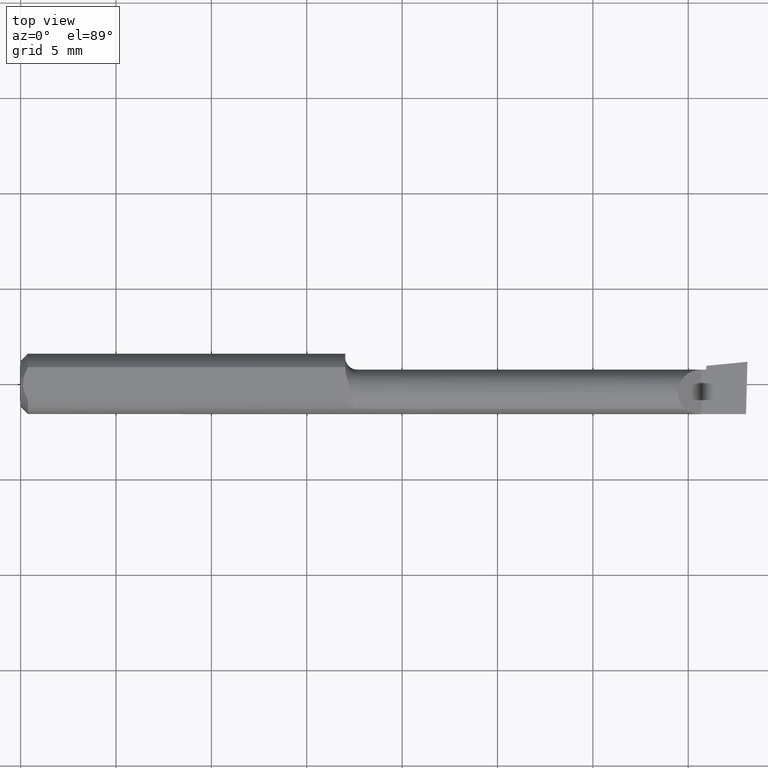
[diagram: clean part render]
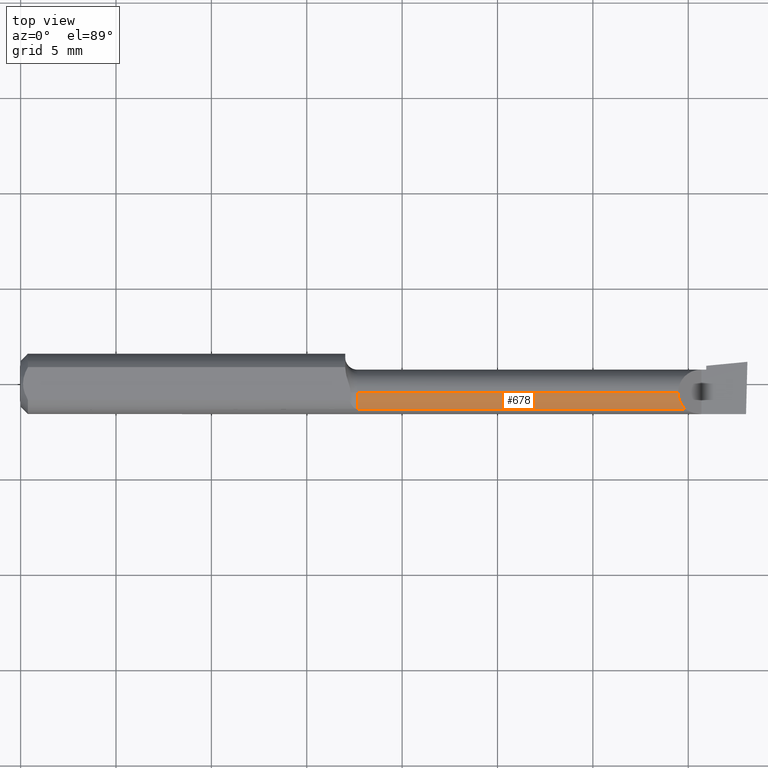
[diagram: same view with one face highlighted and labeled with its STEP entity id]
A machine part, top view. The second image highlights one B-rep face of the part: STEP entity #678.
In plain terms, the highlighted cylindrical surface (edge-blend (fillet) strip) has radius 1.2205 mm, axis along (-1, -0, -0).
Its self-contained STEP definition (entity closure, byte-faithful):
#11 = VECTOR ( 'NONE', #612, 39.37007874015748143 ) ;
#17 = DIRECTION ( 'NONE',  ( 0.000000000000000000, 0.000000000000000000, 1.000000000000000000 ) ) ;
#27 = CARTESIAN_POINT ( 'NONE',  ( 1.370749270080770632, -0.05210000000000009068, 0.03425072991922931132 ) ) ;
#31 = CARTESIAN_POINT ( 'NONE',  ( 1.055000000000000160, -0.05210000000000012538, 0.03425072991922926274 ) ) ;
#32 = EDGE_CURVE ( 'NONE', #698, #240, #672, .T. ) ;
#83 = CARTESIAN_POINT ( 'NONE',  ( 1.361790413321597892, -0.04299473640227071541, 0.04320958667840185674 ) ) ;
#87 = ORIENTED_EDGE ( 'NONE', *, *, #303, .T. ) ;
#119 = VERTEX_POINT ( 'NONE', #179 ) ;
#137 = CARTESIAN_POINT ( 'NONE',  ( 1.356949999999999656, -0.03117368152160950728, 0.04804999999999994692 ) ) ;
#147 = CARTESIAN_POINT ( 'NONE',  ( 0.000000000000000000, -0.01839999999999999969, 0.04804999999999994692 ) ) ;
#153 = ORIENTED_EDGE ( 'NONE', *, *, #235, .T. ) ;
#179 = CARTESIAN_POINT ( 'NONE',  ( 0.6950000000000000622, -0.01839999999999999969, 0.04804999999999990529 ) ) ;
#191 = AXIS2_PLACEMENT_3D ( 'NONE', #582, #291, #17 ) ;
#196 = CARTESIAN_POINT ( 'NONE',  ( 0.6950000000000000622, -0.05210000000000024334, 0.03425072991922908927 ) ) ;
#205 = FACE_OUTER_BOUND ( 'NONE', #577, .T. ) ;
#235 = EDGE_CURVE ( 'NONE', #240, #261, #733, .T. ) ;
#240 = VERTEX_POINT ( 'NONE', #27 ) ;
#261 = VERTEX_POINT ( 'NONE', #720 ) ;
#291 = DIRECTION ( 'NONE',  ( -1.000000000000000000, -0.000000000000000000, -0.000000000000000000 ) ) ;
#303 = EDGE_CURVE ( 'NONE', #261, #119, #655, .T. ) ;
#363 = DIRECTION ( 'NONE',  ( -1.000000000000000000, -0.000000000000000000, -0.000000000000000000 ) ) ;
#368 = DIRECTION ( 'NONE',  ( -1.000000000000000000, -0.000000000000000000, -0.000000000000000000 ) ) ;
#413 = CARTESIAN_POINT ( 'NONE',  ( 1.356949999999999878, -0.01839999999999999969, 0.04804999999999994692 ) ) ;
#425 = CARTESIAN_POINT ( 'NONE',  ( 0.000000000000000000, -0.01839999999999999969, 0.000000000000000000 ) ) ;
#437 = ORIENTED_EDGE ( 'NONE', *, *, #32, .T. ) ;
#524 = CYLINDRICAL_SURFACE ( 'NONE', #633, 0.04804999999999994692 ) ;
#534 = EDGE_CURVE ( 'NONE', #698, #119, #631, .T. ) ;
#577 = EDGE_LOOP ( 'NONE', ( #153, #87, #635, #437 ) ) ;
#582 = CARTESIAN_POINT ( 'NONE',  ( 0.6950000000000000622, -0.01839999999999999969, 0.000000000000000000 ) ) ;
#602 = CARTESIAN_POINT ( 'NONE',  ( 1.370749270080770632, -0.05210000000000009068, 0.03425072991922931132 ) ) ;
#612 = DIRECTION ( 'NONE',  ( 1.000000000000000000, 0.000000000000000000, 0.000000000000000000 ) ) ;
#631 = CIRCLE ( 'NONE', #191, 0.04804999999999990529 ) ;
#633 = AXIS2_PLACEMENT_3D ( 'NONE', #425, #363, #644 ) ;
#635 = ORIENTED_EDGE ( 'NONE', *, *, #534, .F. ) ;
#644 = DIRECTION ( 'NONE',  ( 0.000000000000000000, 0.000000000000000000, 1.000000000000000000 ) ) ;
#655 = LINE ( 'NONE', #147, #695 ) ;
#672 = LINE ( 'NONE', #31, #11 ) ;
#678 = ADVANCED_FACE ( 'NONE', ( #205 ), #524, .T. ) ;
#695 = VECTOR ( 'NONE', #368, 39.37007874015748143 ) ;
#698 = VERTEX_POINT ( 'NONE', #196 ) ;
#720 = CARTESIAN_POINT ( 'NONE',  ( 1.356949999999999878, -0.01839999999999999969, 0.04804999999999994692 ) ) ;
#733 =( BOUNDED_CURVE ( )  B_SPLINE_CURVE ( 3, ( #602, #83, #137, #413 ),
 .UNSPECIFIED., .F., .T. ) 
 B_SPLINE_CURVE_WITH_KNOTS ( ( 4, 4 ),
 ( 5.505891808168996704, 6.283185307179586232 ),
 .UNSPECIFIED. ) 
 CURVE ( )  GEOMETRIC_REPRESENTATION_ITEM ( )  RATIONAL_B_SPLINE_CURVE ( ( 1.000000000000000000, 0.9502818019828904728, 0.9502818019828904728, 1.000000000000000000 ) ) 
 REPRESENTATION_ITEM ( '' )  );